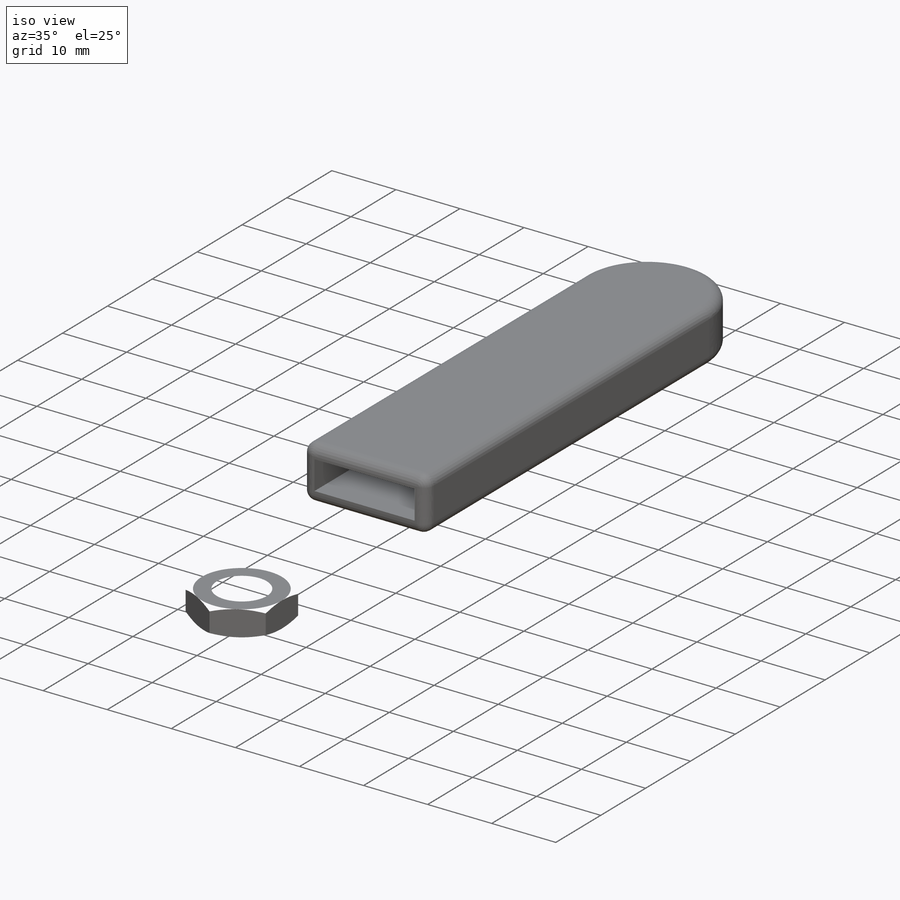
[diagram: iso view]
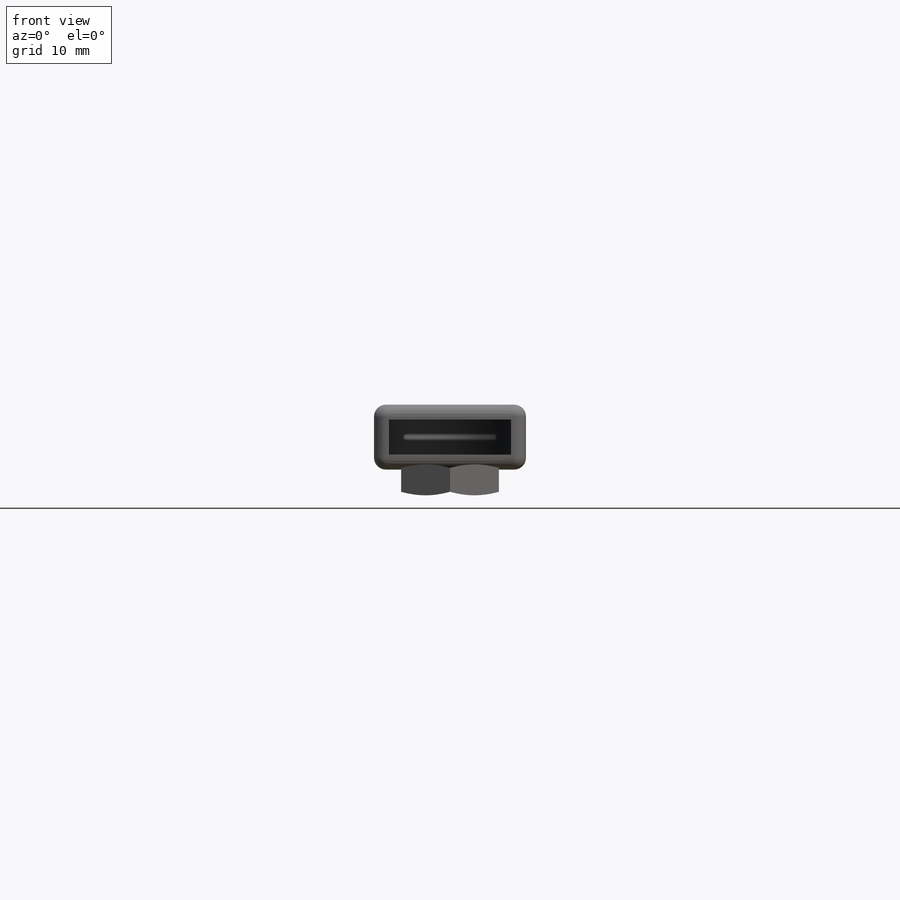
[diagram: front view]
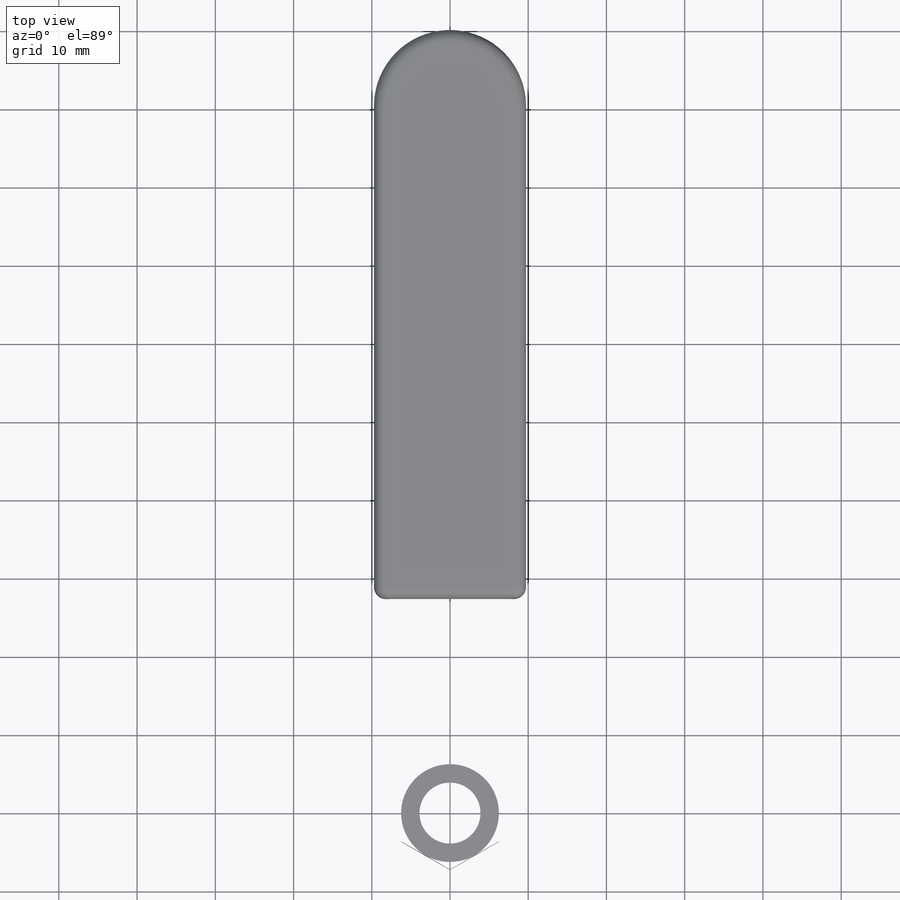
[diagram: top view]
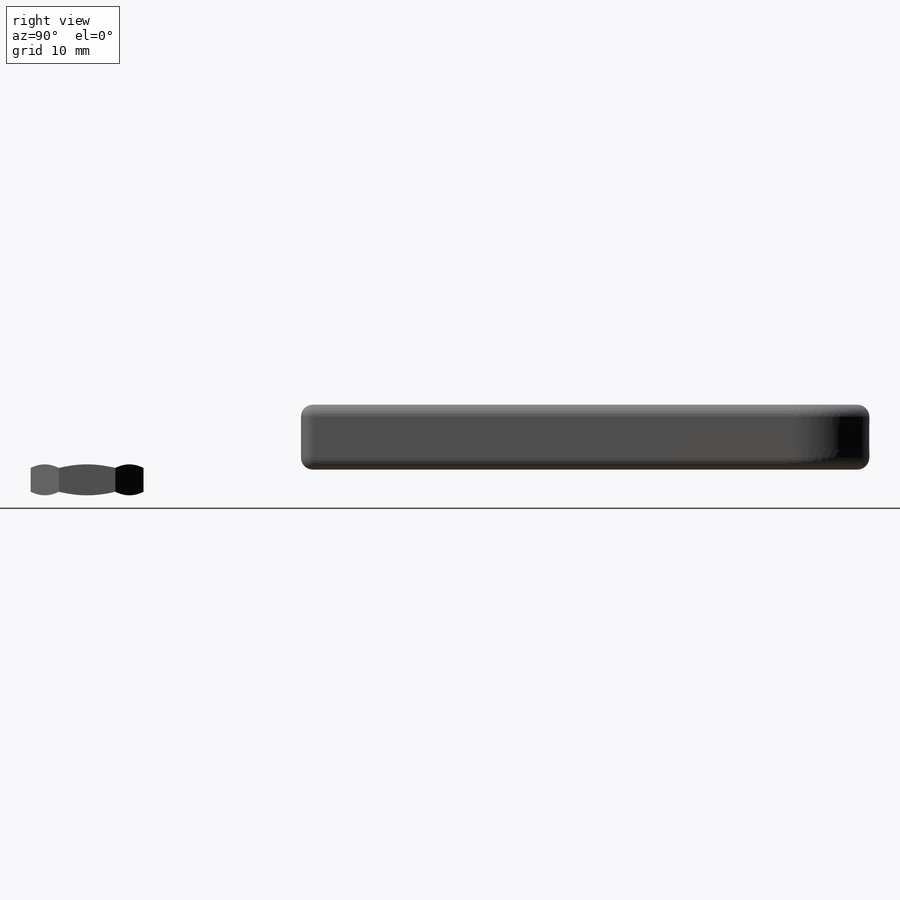
[diagram: right view]
SOLIDWORKS PART (.sldprt)
format: sldprt  version: not decoded by parser v0  size: 1,303,040 bytes
history: native  units: mm
features: sketch x18, extrude x8, revolve x4, cut_revolve x4, fillet x4, mirror x3, chamfer x2, cut_extrude x2, material x1, pattern_linear x1, boolean_combine x1, plane x1 (+13 scaffold rows collapsed)
feature tree (62):
  scaffold x13  (default folders/planes/origin — collapsed)
  material  "Material <not specified>"
  sketch  "Sketch1"  dims[c1.D1=~16.540476mm c2.D1=60.0deg c2.E0=19.2532mm c2.Thread Pitch=~1.814286mm c2.D4=~0.177469mm c3.D4=3.58deg c3.D5=~0.078395mm c3.D2=~0.059871mm c3.D3=~0.069167mm c3.L2 Thread Engagement=13.5636mm c3.l Thread Length=15.494mm c3.ID=102.2604mm c3.Pipe OD=114.3mm c3.Overall Length=304.8mm c4.D5=33.02mm c4.D6=6.0198mm c4.Body Length=58.7375mm]
  revolve  "Revolve1"  Angle=360deg
  sketch  "Sketch6"
  cut_revolve  "Cut-Revolve3"  Angle=360deg
  sketch  "Sketch7"  dims[c1.Min ID=14.986mm c1.D1=~14.44824mm c2.D1=45.0deg]
  revolve  "Revolve3"  Angle=360deg
  mirror  "Mirror2"
  sketch  "Sketch8"  dims[Body Hex=24.9936mm]
  extrude  "Extrude1"  [1 undecoded]
  sketch  "Sketch9"  dims[c1.D1=6.35mm c1.D2=31.242mm c1.D3=~41.183042mm c2.D3=135.0deg c2.D4=6.35mm c2.D5=~47.571885mm]
  revolve  "Revolve4"  Angle=360deg
  sketch  "Sketch10"  dims[c1.Handle Height=42.9768mm c1.Handle Length=99.9998mm c1.D3=15.621mm c1.D4=7.62mm c1.D5=~19.807616mm c1.D6=3.81mm c1.D7=1.27mm c1.D8=0.254mm c1.D9=2.54mm c1.D10=~10.208321mm c2.D10=150.0deg c2.D11=0.0254mm c2.D12=0.0254mm c2.D13=~9.891108mm c2.D14=2.54mm c2.D2=1.905mm c2.D4=1.905mm]
  revolve  "Revolve5"  Angle=360deg
  chamfer  "Chamfer2"  Distance=2.54mm Angle=45deg
  chamfer  "Chamfer1"  Distance=0.762mm Angle=45deg
  sketch  "Sketch20"  dims[c1.D1=~0.099219mm c1.D2=~0.198437mm c1.D3=~0.79375mm c1.D4=~1.570135mm c2.D4=60.0deg c2.D5=~0.79375mm]
  cut_revolve  "Cut-Revolve6"  Angle=360deg
  pattern_linear  "LPattern1"  Count1=2 Count2=12 Spacing1=0.79375mm Spacing2=0.79375mm
  sketch  "Sketch26"  dims[D1=0.0mm]
  extrude  "Extrude8"  Depth=0.127mm
  sketch  "Sketch16"  dims[D1=0.508mm]
  cut_revolve  "Cut-Revolve5"  Angle=360deg
  boolean_combine  "Combine1"
  sketch  "Sketch11"  dims[D1=1.905mm]
  extrude  "Extrude2"  Depth=15.621mm
  sketch  "Sketch21"
  cut_extrude  "Cut-Extrude1"  [1 undecoded]
  fillet  "Fillet1"  Radius=0.254mm
  fillet  "Fillet2"  Radius=2.794mm
  fillet  "Fillet3"  Radius=7.8105mm
  sketch  "Sketch12"  dims[D1=1.905mm D2=2.54mm]
  extrude  "Extrude3"  Depth=1.905mm
  sketch  "Sketch13"  dims[D1=0.0mm]
  extrude  "Extrude4"  Depth=1.905mm
  sketch  "Sketch14"  dims[D1=0.0mm]
  extrude  "Extrude5"  [1 undecoded]
  fillet  "Fillet4"  Radius=1.524mm
  sketch  "Sketch15"  dims[D1=12.4968mm]
  extrude  "Extrude6"  Depth=3.956443mm
  sketch  "Sketch22"  dims[c1.D1=~1.288633mm c2.D1=25.0deg c2.D2=12.4968mm]
  cut_revolve  "Cut-Revolve7"  Angle=360deg
  sketch  "Sketch23"  dims[c1.D1=~3.90525mm c1.D2=~9.487824mm c2.D2=10.0deg c2.D3=0.508mm c2.D4=1.27mm c2.D5=15.621mm]
  cut_extrude  "Cut-Extrude2"  [1 undecoded]
  sketch  "Sketch24"  dims[c1.D1=0.254mm c1.D2=0.127mm c1.D3=1.27mm c1.D4=1.524mm c2.D2=0.127mm c2.D4=~3.90525mm]
  extrude  "Extrude7"  Depth=1.27mm
  plane  "Plane1"
  mirror  "Mirror3"
  mirror  "Draft2"
decode coverage: 37 of 47 modeling features carry decoded parameters
note: ~ marks probable driven/reference dimensions
note: 4 parameter values undecoded
summary: no parameter record found for 4 features
note: suppression state not decoded; provenance and decode notes live in map.json
